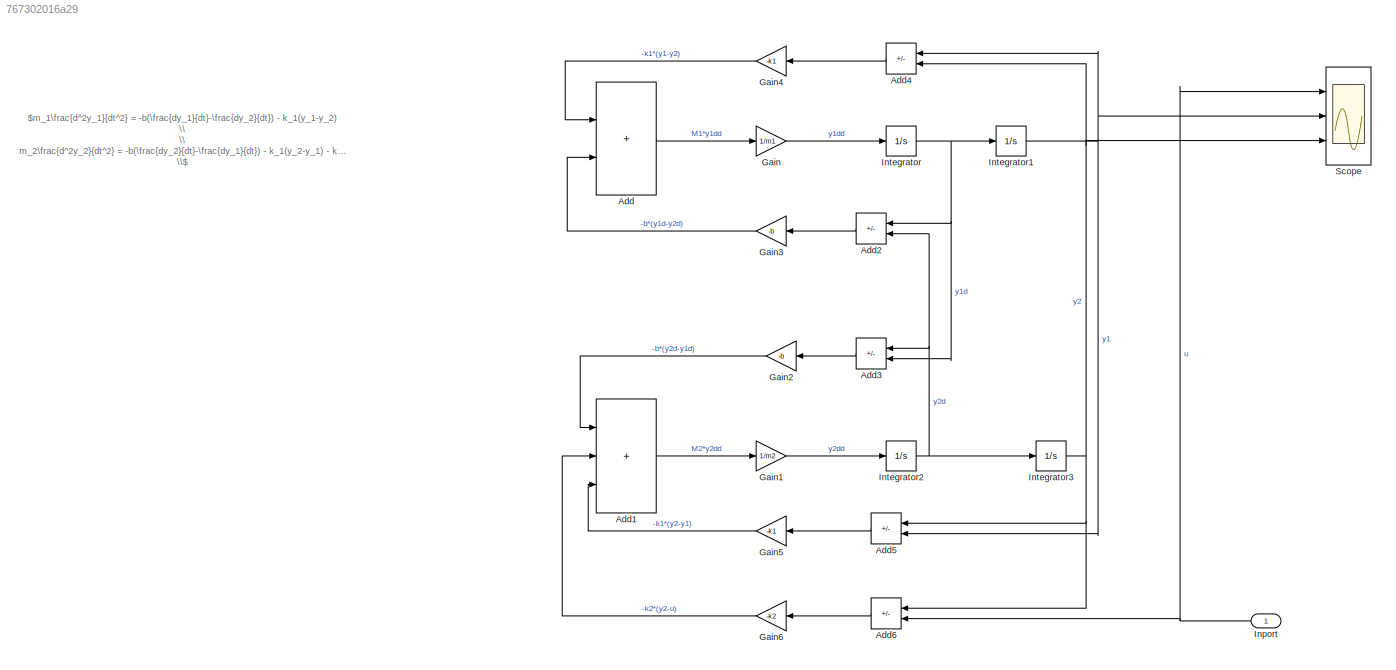
MODEL slx_767302016a29
KIND model
CONFIG AbsTol = auto
CONFIG EnableMultiTasking = off
CONFIG FixedStep = auto
CONFIG MaxStep = 0.001
CONFIG MinStep = auto
CONFIG RelTol = 1e-3
CONFIG SampleTimeConstraint = Unconstrained
CONFIG SolverName = VariableStepAuto
CONFIG StartTime = 0.0
CONFIG StopTime = 100.0
BLOCK [Sum] Add
  IconShape = rectangular
  Ports = [2, 1]
BLOCK [Sum] Add1
  IconShape = rectangular
  Inputs = +++
  Ports = [3, 1]
BLOCK [Sum] Add2
  IconShape = rectangular
  Inputs = +-
  NameLocation = top
  Ports = [2, 1]
BLOCK [Sum] Add3
  IconShape = rectangular
  Inputs = +-
  NameLocation = top
  Ports = [2, 1]
BLOCK [Sum] Add4
  IconShape = rectangular
  Inputs = +-
  NameLocation = top
  Ports = [2, 1]
BLOCK [Sum] Add5
  IconShape = rectangular
  Inputs = +-
  NameLocation = top
  Ports = [2, 1]
BLOCK [Sum] Add6
  IconShape = rectangular
  Inputs = +-
  NameLocation = top
  Ports = [2, 1]
BLOCK [Gain] Gain
  Gain = 1/m1
BLOCK [Gain] Gain1
  Gain = 1/m2
BLOCK [Gain] Gain2
  Gain = -b
  NameLocation = top
BLOCK [Gain] Gain3
  Gain = -b
  NameLocation = top
BLOCK [Gain] Gain4
  Gain = -k1
  NameLocation = top
BLOCK [Gain] Gain5
  Gain = -k1
  NameLocation = top
BLOCK [Gain] Gain6
  Gain = -k2
  NameLocation = top
BLOCK [Inport] Inport
  NameLocation = top
BLOCK [Integrator] Integrator
  Ports = [1, 1]
BLOCK [Integrator] Integrator1
  Ports = [1, 1]
BLOCK [Integrator] Integrator2
  Ports = [1, 1]
BLOCK [Integrator] Integrator3
  Ports = [1, 1]
BLOCK [Scope] Scope
  Floating = off
  NumInputPorts = 3
  Ports = [3]
  ScopeSpecificationString = Simulink.scopes.TimeScopeBlockCfg('CurrentConfiguration', extmgr.ConfigurationSet(extmgr.Configuration('Core','General UI',true),extmgr.Configuration('Core','Source UI',true),extmgr.Configuration('Sources','WiredSimulink',true),extmgr.Configuration('Visuals','Time Domain',true,'SerializedDisplays',{struct('MinYLimReal','-0.625','MaxYLimReal','0.625','YLabelReal','','MinYLimMag','0.00000','MaxYLimM...<+2669ch>
ANNOTATION (root): $m_1\frac{d^2y_1}{dt^2} = -b(\frac{dy_1}{dt}-\frac{dy_2}{dt}) - k_1(y_1-y_2) \\ \\ m_2\frac{d^2y_2}{dt^2} = -b(\frac{dy_2}{dt}-\frac{dy_1}{dt}) - k_1(y_2-y_1) - k_2(y_2-u) \\$
LINE Add1:1 -> Gain1:1
LINE Add2:1 -> Gain3:1
LINE Add3:1 -> Gain2:1
LINE Add4:1 -> Gain4:1
LINE Add5:1 -> Gain5:1
LINE Add6:1 -> Gain6:1
LINE Add:1 -> Gain:1
LINE Gain1:1 -> Integrator2:1
LINE Gain2:1 -> Add1:1
LINE Gain3:1 -> Add:2
LINE Gain4:1 -> Add:1
LINE Gain5:1 -> Add1:3
LINE Gain6:1 -> Add1:2
LINE Gain:1 -> Integrator:1
NET Inport:1 -> Add6:2, Scope:1
NET Integrator1:1 -> Add4:1, Add5:2, Scope:2
NET Integrator2:1 -> Add2:2, Add3:1, Integrator3:1
NET Integrator3:1 -> Add4:2, Add5:1, Add6:1, Scope:3
NET Integrator:1 -> Add2:1, Add3:2, Integrator1:1
note: NET lines group one-source signal fan-out (src -> all destinations, sorted); 1:1 wires keep LINE
